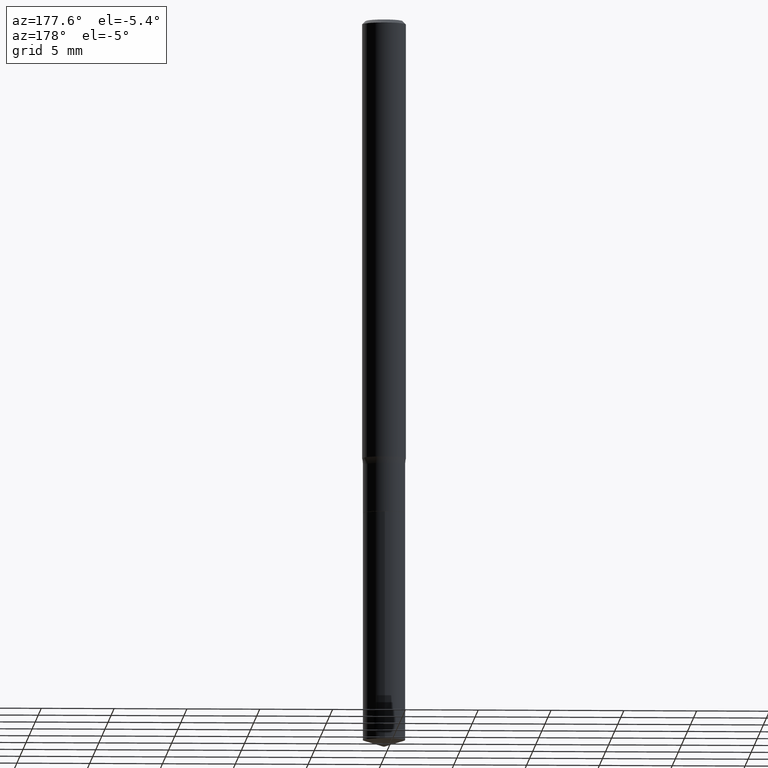
[diagram: clean part render]
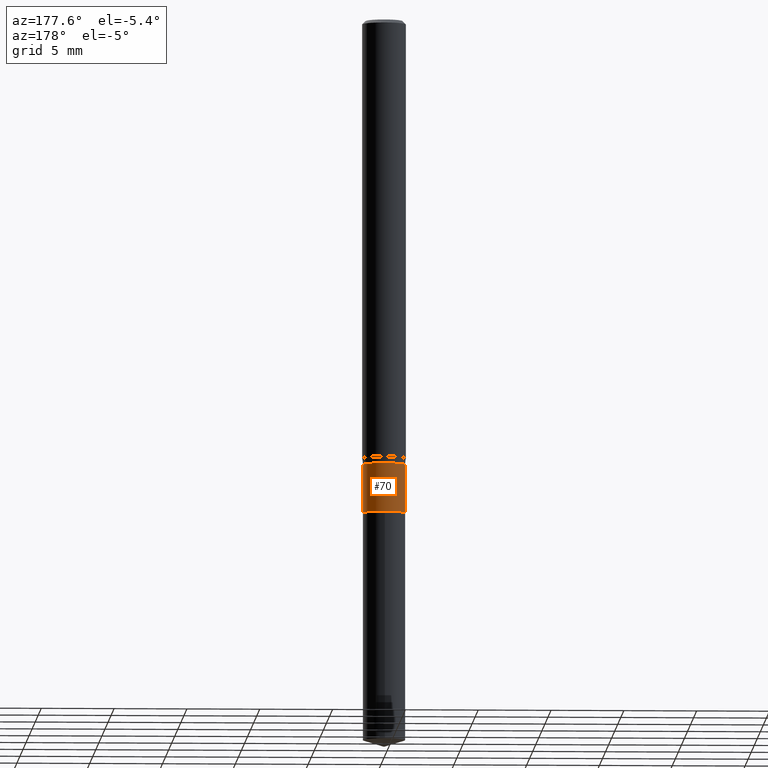
[diagram: same view with one face highlighted and labeled with its STEP entity id]
A machine part, auxiliary view. The second image highlights one B-rep face of the part: STEP entity #70.
In plain terms, the highlighted cylindrical surface (edge-blend (fillet) strip) has radius 1.4503 mm, axis along (-0, 0, 1).
Its self-contained STEP definition (entity closure, byte-faithful):
#1 = DIRECTION ( 'NONE',  ( 1.000000000000000000, -6.982962677686271444E-15, 0.000000000000000000 ) ) ;
#5 = CARTESIAN_POINT ( 'NONE',  ( 3.262744481212208605E-29, -4.658334402284523139E-15, -1.334199999999999608 ) ) ;
#12 = ORIENTED_EDGE ( 'NONE', *, *, #107, .F. ) ;
#27 = DIRECTION ( 'NONE',  ( -2.445468806185136877E-29, 3.491481338843145188E-15, 1.000000000000000000 ) ) ;
#35 = VERTEX_POINT ( 'NONE', #442 ) ;
#57 = ORIENTED_EDGE ( 'NONE', *, *, #282, .T. ) ;
#66 = AXIS2_PLACEMENT_3D ( 'NONE', #118, #81, #1 ) ;
#67 = LINE ( 'NONE', #222, #405 ) ;
#70 = ADVANCED_FACE ( 'NONE', ( #77 ), #106, .T. ) ;
#77 = FACE_OUTER_BOUND ( 'NONE', #177, .T. ) ;
#78 = ORIENTED_EDGE ( 'NONE', *, *, #463, .T. ) ;
#81 = DIRECTION ( 'NONE',  ( -2.445468806185136597E-29, 3.491481338843145583E-15, 1.000000000000000000 ) ) ;
#103 = CARTESIAN_POINT ( 'NONE',  ( 0.000000000000000000, 0.000000000000000000, 0.000000000000000000 ) ) ;
#106 = CYLINDRICAL_SURFACE ( 'NONE', #171, 0.05709999999999997716 ) ;
#107 = EDGE_CURVE ( 'NONE', #35, #354, #67, .T. ) ;
#118 = CARTESIAN_POINT ( 'NONE',  ( 2.942877161363193285E-29, -4.201648643163841239E-15, -1.203400000000000025 ) ) ;
#149 = CARTESIAN_POINT ( 'NONE',  ( -0.05709999999999997716, 4.057199021190170439E-16, -2.808711936535549889E-30 ) ) ;
#150 = DIRECTION ( 'NONE',  ( 1.000000000000000000, -6.982962677686266711E-15, 4.876176775795935793E-29 ) ) ;
#171 = AXIS2_PLACEMENT_3D ( 'NONE', #103, #486, #150 ) ;
#177 = EDGE_LOOP ( 'NONE', ( #57, #78, #382, #12 ) ) ;
#187 = LINE ( 'NONE', #149, #342 ) ;
#193 = VERTEX_POINT ( 'NONE', #459 ) ;
#215 = DIRECTION ( 'NONE',  ( -2.445468806185136877E-29, 3.491481338843145188E-15, 1.000000000000000000 ) ) ;
#222 = CARTESIAN_POINT ( 'NONE',  ( 0.05709999999999997716, -3.987271688958856639E-16, 2.784296938979478177E-30 ) ) ;
#237 = CIRCLE ( 'NONE', #432, 0.05709999999999998410 ) ;
#241 = CARTESIAN_POINT ( 'NONE',  ( 0.05709999999999997022, -4.600375812059727642E-15, -1.203400000000000025 ) ) ;
#274 = CARTESIAN_POINT ( 'NONE',  ( -0.05709999999999997022, -4.024271620605165884E-15, -1.203400000000000025 ) ) ;
#277 = DIRECTION ( 'NONE',  ( 1.000000000000000000, -6.982962677686261189E-15, 0.000000000000000000 ) ) ;
#282 = EDGE_CURVE ( 'NONE', #35, #193, #237, .T. ) ;
#325 = VERTEX_POINT ( 'NONE', #274 ) ;
#342 = VECTOR ( 'NONE', #215, 39.37007874015748143 ) ;
#347 = EDGE_CURVE ( 'NONE', #354, #325, #492, .T. ) ;
#354 = VERTEX_POINT ( 'NONE', #241 ) ;
#382 = ORIENTED_EDGE ( 'NONE', *, *, #347, .F. ) ;
#405 = VECTOR ( 'NONE', #27, 39.37007874015748143 ) ;
#432 = AXIS2_PLACEMENT_3D ( 'NONE', #5, #466, #277 ) ;
#442 = CARTESIAN_POINT ( 'NONE',  ( 0.05709999999999998410, -5.057061571180408753E-15, -1.334199999999999608 ) ) ;
#459 = CARTESIAN_POINT ( 'NONE',  ( -0.05709999999999998410, -4.024271620605165884E-15, -1.334199999999999608 ) ) ;
#463 = EDGE_CURVE ( 'NONE', #193, #325, #187, .T. ) ;
#466 = DIRECTION ( 'NONE',  ( -2.445468806185136597E-29, 3.491481338843145583E-15, 1.000000000000000000 ) ) ;
#486 = DIRECTION ( 'NONE',  ( -2.445468806185136597E-29, 3.491481338843145583E-15, 1.000000000000000000 ) ) ;
#492 = CIRCLE ( 'NONE', #66, 0.05709999999999997022 ) ;